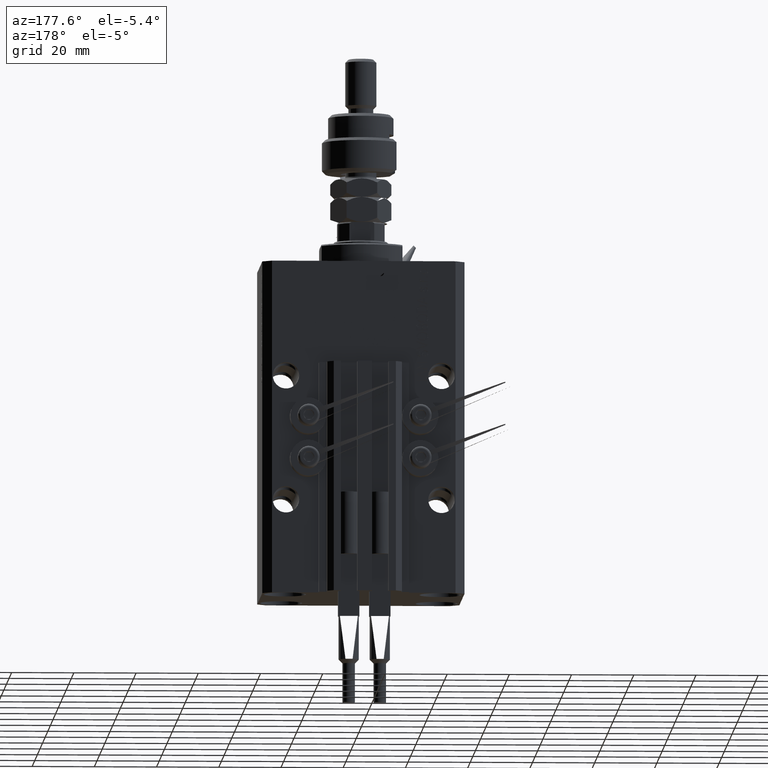
[diagram: clean part render]
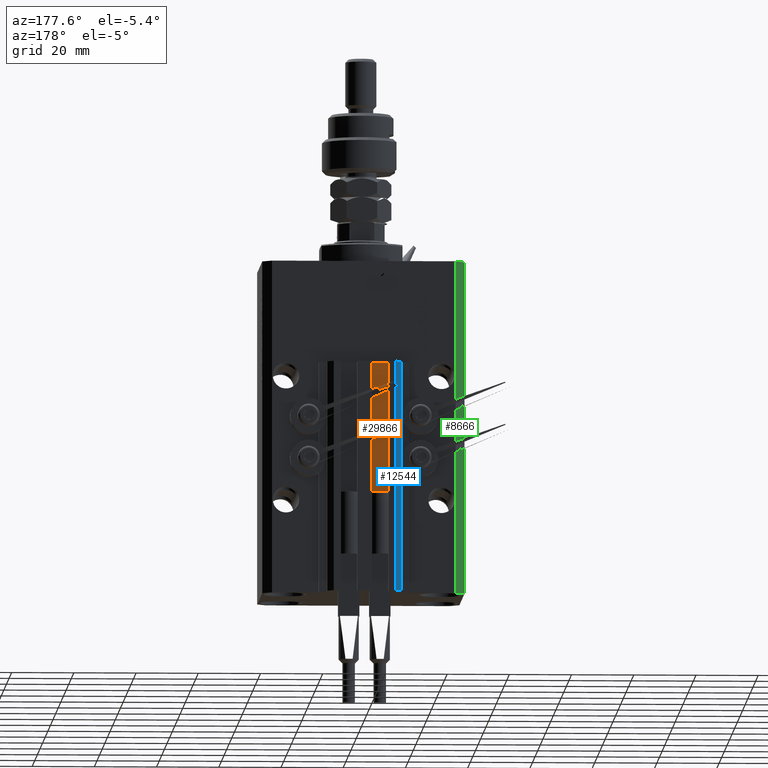
[diagram: same view with three faces highlighted in distinct colors, each labeled with its STEP entity id]
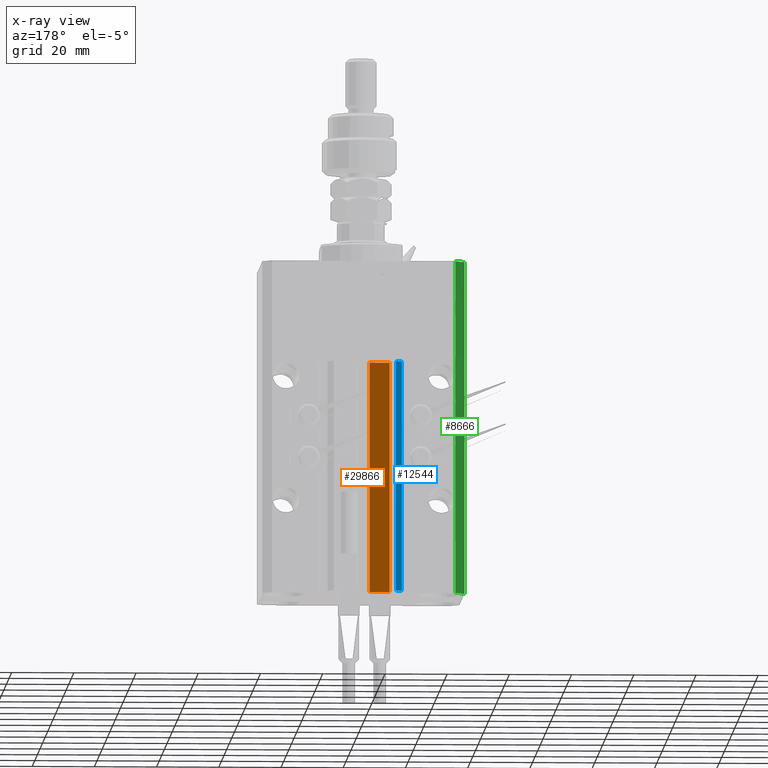
[diagram: x-ray of the same camera — body ghosted, the three highlighted faces saturated]
A machine part, auxiliary view with three faces highlighted in distinct colors.
The next image is the same camera in x-ray (body ghosted, the three faces saturated) — at least one of them is partly hidden behind the body in this view.
Their STEP definitions:

[orange] entity #29866 — the highlighted planar face has unit normal (0, 1, 0).
#750 = EDGE_CURVE ( 'NONE', #6937, #45151, #36363, .T. ) ;
#4716 = CARTESIAN_POINT ( 'NONE',  ( -1.800000000000000933, 24.49999999999949551, -107.0000000000000000 ) ) ;
#6333 = CARTESIAN_POINT ( 'NONE',  ( -8.199999999999999289, 24.49999999999949551, -107.0000000000000000 ) ) ;
#6937 = VERTEX_POINT ( 'NONE', #38541 ) ;
#11064 = VECTOR ( 'NONE', #13319, 1000.000000000000000 ) ;
#11807 = VERTEX_POINT ( 'NONE', #44162 ) ;
#12284 = AXIS2_PLACEMENT_3D ( 'NONE', #12525, #28350, #44183 ) ;
#12525 = CARTESIAN_POINT ( 'NONE',  ( -1.800000000000000933, 24.49999999999949551, -107.0000000000000000 ) ) ;
#12637 = LINE ( 'NONE', #48706, #46722 ) ;
#13319 = DIRECTION ( 'NONE',  ( 0.000000000000000000, 0.000000000000000000, 1.000000000000000000 ) ) ;
#14047 = CARTESIAN_POINT ( 'NONE',  ( -1.800000000000000933, 24.49999999999949551, -33.00000000000000000 ) ) ;
#16119 = VECTOR ( 'NONE', #25987, 1000.000000000000000 ) ;
#18198 = LINE ( 'NONE', #14047, #16119 ) ;
#19123 = ORIENTED_EDGE ( 'NONE', *, *, #21679, .F. ) ;
#21679 = EDGE_CURVE ( 'NONE', #6937, #11807, #12637, .T. ) ;
#22696 = ORIENTED_EDGE ( 'NONE', *, *, #48098, .T. ) ;
#22940 = ORIENTED_EDGE ( 'NONE', *, *, #46685, .F. ) ;
#25987 = DIRECTION ( 'NONE',  ( -1.000000000000000000, 0.000000000000000000, 0.000000000000000000 ) ) ;
#27269 = EDGE_LOOP ( 'NONE', ( #22940, #19123, #33754, #22696 ) ) ;
#28350 = DIRECTION ( 'NONE',  ( 0.000000000000000000, 1.000000000000000000, -0.000000000000000000 ) ) ;
#28680 = VECTOR ( 'NONE', #36624, 1000.000000000000000 ) ;
#29866 = ADVANCED_FACE ( 'NONE', ( #32251 ), #48083, .T. ) ;
#32251 = FACE_OUTER_BOUND ( 'NONE', #27269, .T. ) ;
#33364 = CARTESIAN_POINT ( 'NONE',  ( -8.199999999999999289, 24.49999999999949551, -107.0000000000000000 ) ) ;
#33538 = VERTEX_POINT ( 'NONE', #47416 ) ;
#33754 = ORIENTED_EDGE ( 'NONE', *, *, #750, .T. ) ;
#36363 = LINE ( 'NONE', #4716, #28680 ) ;
#36513 = DIRECTION ( 'NONE',  ( 0.000000000000000000, 0.000000000000000000, 1.000000000000000000 ) ) ;
#36624 = DIRECTION ( 'NONE',  ( -1.000000000000000000, 0.000000000000000000, 0.000000000000000000 ) ) ;
#38541 = CARTESIAN_POINT ( 'NONE',  ( -1.800000000000000933, 24.49999999999949551, -107.0000000000000000 ) ) ;
#44162 = CARTESIAN_POINT ( 'NONE',  ( -1.800000000000000933, 24.49999999999949551, -33.00000000000000000 ) ) ;
#44183 = DIRECTION ( 'NONE',  ( 0.000000000000000000, 0.000000000000000000, 1.000000000000000000 ) ) ;
#45151 = VERTEX_POINT ( 'NONE', #33364 ) ;
#46685 = EDGE_CURVE ( 'NONE', #11807, #33538, #18198, .T. ) ;
#46722 = VECTOR ( 'NONE', #36513, 1000.000000000000000 ) ;
#47416 = CARTESIAN_POINT ( 'NONE',  ( -8.199999999999999289, 24.49999999999949551, -33.00000000000000000 ) ) ;
#48083 = PLANE ( 'NONE',  #12284 ) ;
#48098 = EDGE_CURVE ( 'NONE', #45151, #33538, #48878, .T. ) ;
#48706 = CARTESIAN_POINT ( 'NONE',  ( -1.800000000000000933, 24.49999999999949551, -107.0000000000000000 ) ) ;
#48878 = LINE ( 'NONE', #6333, #11064 ) ;

[blue] entity #12544 — the highlighted planar face has unit normal (-0.7071, 0.7071, 0).
#1041 = VECTOR ( 'NONE', #10032, 1000.000000000000000 ) ;
#2822 = LINE ( 'NONE', #6472, #49285 ) ;
#4453 = CARTESIAN_POINT ( 'NONE',  ( -10.00000000000000000, 30.49999999999948841, -107.0000000000000000 ) ) ;
#6198 = CARTESIAN_POINT ( 'NONE',  ( -10.00000000000000000, 30.49999999999948841, -33.00000000000000000 ) ) ;
#6472 = CARTESIAN_POINT ( 'NONE',  ( -12.00000000000000000, 28.49999999999948841, -107.0000000000000000 ) ) ;
#6661 = LINE ( 'NONE', #33891, #1041 ) ;
#8756 = CARTESIAN_POINT ( 'NONE',  ( -10.00000000000000000, 30.49999999999948841, -107.0000000000000000 ) ) ;
#9395 = CARTESIAN_POINT ( 'NONE',  ( -10.00000000000000000, 30.49999999999948841, -107.0000000000000000 ) ) ;
#10032 = DIRECTION ( 'NONE',  ( 0.000000000000000000, 0.000000000000000000, 1.000000000000000000 ) ) ;
#10575 = VERTEX_POINT ( 'NONE', #15653 ) ;
#11487 = DIRECTION ( 'NONE',  ( -0.7071067811865472397, -0.7071067811865479058, 0.000000000000000000 ) ) ;
#12011 = FACE_OUTER_BOUND ( 'NONE', #33089, .T. ) ;
#12544 = ADVANCED_FACE ( 'NONE', ( #12011 ), #25464, .T. ) ;
#13305 = AXIS2_PLACEMENT_3D ( 'NONE', #9395, #40785, #25738 ) ;
#15653 = CARTESIAN_POINT ( 'NONE',  ( -12.00000000000000000, 28.49999999999948841, -33.00000000000000000 ) ) ;
#19616 = EDGE_CURVE ( 'NONE', #40903, #10575, #38736, .T. ) ;
#19639 = ORIENTED_EDGE ( 'NONE', *, *, #20735, .F. ) ;
#20430 = DIRECTION ( 'NONE',  ( -0.7071067811865472397, -0.7071067811865479058, 0.000000000000000000 ) ) ;
#20735 = EDGE_CURVE ( 'NONE', #22668, #40903, #6661, .T. ) ;
#21676 = EDGE_CURVE ( 'NONE', #22668, #45194, #29480, .T. ) ;
#22668 = VERTEX_POINT ( 'NONE', #4453 ) ;
#22718 = CARTESIAN_POINT ( 'NONE',  ( -12.00000000000000000, 28.49999999999948841, -107.0000000000000000 ) ) ;
#24133 = EDGE_CURVE ( 'NONE', #45194, #10575, #2822, .T. ) ;
#25464 = PLANE ( 'NONE',  #13305 ) ;
#25738 = DIRECTION ( 'NONE',  ( -0.7071067811865472397, -0.7071067811865479058, 0.000000000000000000 ) ) ;
#28338 = VECTOR ( 'NONE', #11487, 999.9999999999998863 ) ;
#29480 = LINE ( 'NONE', #8756, #50036 ) ;
#33089 = EDGE_LOOP ( 'NONE', ( #48509, #19639, #38039, #33349 ) ) ;
#33349 = ORIENTED_EDGE ( 'NONE', *, *, #24133, .T. ) ;
#33891 = CARTESIAN_POINT ( 'NONE',  ( -10.00000000000000000, 30.49999999999948841, -107.0000000000000000 ) ) ;
#38039 = ORIENTED_EDGE ( 'NONE', *, *, #21676, .T. ) ;
#38736 = LINE ( 'NONE', #38994, #28338 ) ;
#38994 = CARTESIAN_POINT ( 'NONE',  ( -10.00000000000000000, 30.49999999999948841, -33.00000000000000000 ) ) ;
#40785 = DIRECTION ( 'NONE',  ( -0.7071067811865479058, 0.7071067811865472397, 0.000000000000000000 ) ) ;
#40903 = VERTEX_POINT ( 'NONE', #6198 ) ;
#42257 = DIRECTION ( 'NONE',  ( 0.000000000000000000, 0.000000000000000000, 1.000000000000000000 ) ) ;
#45194 = VERTEX_POINT ( 'NONE', #22718 ) ;
#48509 = ORIENTED_EDGE ( 'NONE', *, *, #19616, .F. ) ;
#49285 = VECTOR ( 'NONE', #42257, 1000.000000000000000 ) ;
#50036 = VECTOR ( 'NONE', #20430, 999.9999999999998863 ) ;

[green] entity #8666 — the highlighted planar face has unit normal (-0.7071, 0.7071, 0).
#42 = VERTEX_POINT ( 'NONE', #15249 ) ;
#1648 = VECTOR ( 'NONE', #26004, 1000.000000000000114 ) ;
#4447 = ORIENTED_EDGE ( 'NONE', *, *, #37491, .F. ) ;
#4842 = VECTOR ( 'NONE', #19240, 1000.000000000000000 ) ;
#5995 = CARTESIAN_POINT ( 'NONE',  ( -29.49999999999650413, 22.49999999999949907, -107.0000000000000000 ) ) ;
#7300 = CARTESIAN_POINT ( 'NONE',  ( -29.49999999999650413, 22.49999999999949907, -107.0000000000000000 ) ) ;
#8666 = ADVANCED_FACE ( 'NONE', ( #31407 ), #47242, .T. ) ;
#8834 = CARTESIAN_POINT ( 'NONE',  ( -29.49999999999650413, 22.49999999999949907, 0.000000000000000000 ) ) ;
#9425 = EDGE_CURVE ( 'NONE', #31315, #42, #48398, .T. ) ;
#10947 = LINE ( 'NONE', #7300, #43837 ) ;
#15249 = CARTESIAN_POINT ( 'NONE',  ( -32.49999999999650413, 19.49999999999949907, 0.000000000000000000 ) ) ;
#15321 = DIRECTION ( 'NONE',  ( -0.7071067811865475727, 0.7071067811865475727, 0.000000000000000000 ) ) ;
#18210 = DIRECTION ( 'NONE',  ( -0.7071067811865474617, -0.7071067811865474617, 0.000000000000000000 ) ) ;
#19240 = DIRECTION ( 'NONE',  ( 0.000000000000000000, 0.000000000000000000, 1.000000000000000000 ) ) ;
#22882 = CARTESIAN_POINT ( 'NONE',  ( -29.49999999999650413, 22.49999999999949907, 0.000000000000000000 ) ) ;
#23631 = CARTESIAN_POINT ( 'NONE',  ( -29.49999999999650413, 22.49999999999949907, -107.0000000000000000 ) ) ;
#24015 = DIRECTION ( 'NONE',  ( 0.000000000000000000, 0.000000000000000000, 1.000000000000000000 ) ) ;
#24779 = EDGE_LOOP ( 'NONE', ( #4447, #42761, #44954, #48662 ) ) ;
#26004 = DIRECTION ( 'NONE',  ( -0.7071067811865474617, -0.7071067811865474617, 0.000000000000000000 ) ) ;
#30100 = EDGE_CURVE ( 'NONE', #41904, #37754, #30914, .T. ) ;
#30580 = AXIS2_PLACEMENT_3D ( 'NONE', #23631, #15321, #31664 ) ;
#30914 = LINE ( 'NONE', #46499, #4842 ) ;
#31315 = VERTEX_POINT ( 'NONE', #31709 ) ;
#31407 = FACE_OUTER_BOUND ( 'NONE', #24779, .T. ) ;
#31664 = DIRECTION ( 'NONE',  ( -0.7071067811865474617, -0.7071067811865474617, 0.000000000000000000 ) ) ;
#31709 = CARTESIAN_POINT ( 'NONE',  ( -32.49999999999650413, 19.49999999999949907, -107.0000000000000000 ) ) ;
#35606 = EDGE_CURVE ( 'NONE', #41904, #31315, #10947, .T. ) ;
#37491 = EDGE_CURVE ( 'NONE', #37754, #42, #38203, .T. ) ;
#37754 = VERTEX_POINT ( 'NONE', #8834 ) ;
#38203 = LINE ( 'NONE', #22882, #1648 ) ;
#38885 = VECTOR ( 'NONE', #24015, 1000.000000000000000 ) ;
#41904 = VERTEX_POINT ( 'NONE', #5995 ) ;
#42761 = ORIENTED_EDGE ( 'NONE', *, *, #30100, .F. ) ;
#43732 = CARTESIAN_POINT ( 'NONE',  ( -32.49999999999650413, 19.49999999999949907, -107.0000000000000000 ) ) ;
#43837 = VECTOR ( 'NONE', #18210, 1000.000000000000114 ) ;
#44954 = ORIENTED_EDGE ( 'NONE', *, *, #35606, .T. ) ;
#46499 = CARTESIAN_POINT ( 'NONE',  ( -29.49999999999650413, 22.49999999999949907, -107.0000000000000000 ) ) ;
#47242 = PLANE ( 'NONE',  #30580 ) ;
#48398 = LINE ( 'NONE', #43732, #38885 ) ;
#48662 = ORIENTED_EDGE ( 'NONE', *, *, #9425, .T. ) ;